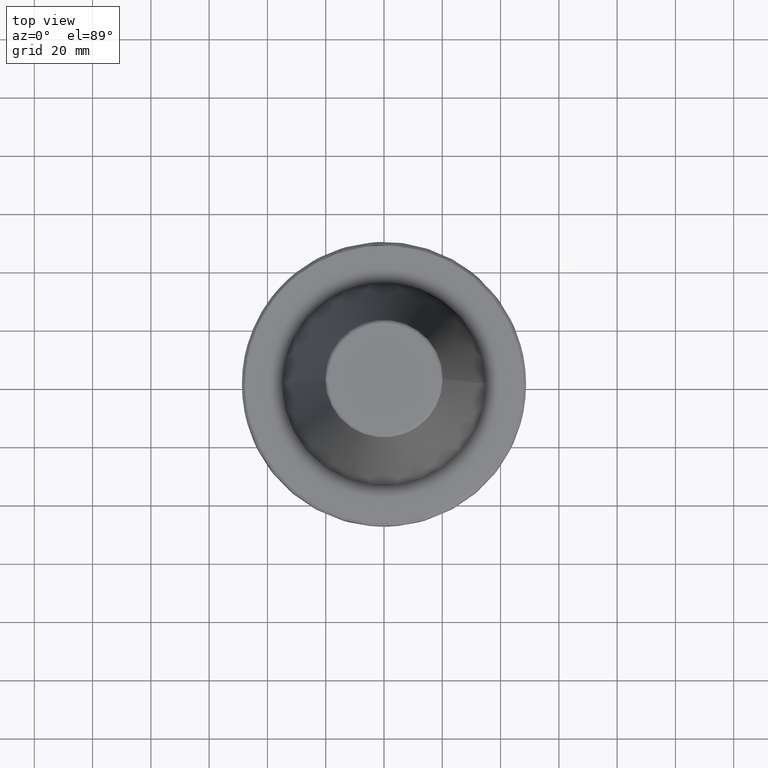
[diagram: clean part render]
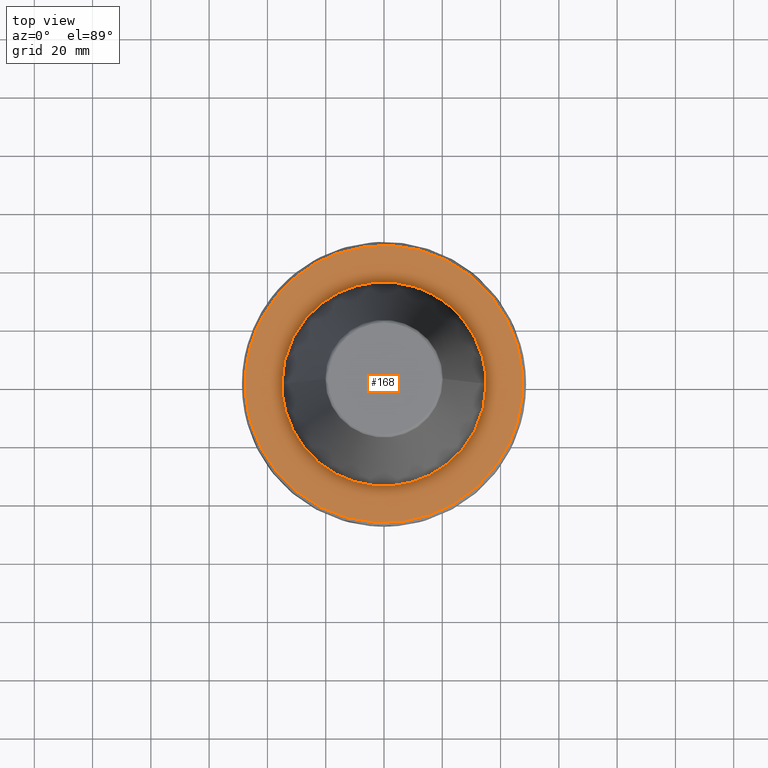
[diagram: same view with one face highlighted and labeled with its STEP entity id]
A machine part, top view. The second image highlights one B-rep face of the part: STEP entity #168.
In plain terms, the highlighted planar face has unit normal (0, 0, 1).
Its self-contained STEP definition (entity closure, byte-faithful):
#4 = FACE_OUTER_BOUND ( 'NONE', #1306, .T. ) ;
#14 = CARTESIAN_POINT ( 'NONE',  ( -34.45762826542809200, 6.138388980637486700, -3.200000000000000600 ) ) ;
#28 = CARTESIAN_POINT ( 'NONE',  ( -32.10730462063523300, 13.98287206292032200, -3.200000000000000200 ) ) ;
#39 = CARTESIAN_POINT ( 'NONE',  ( -20.02866069170161700, 28.70573247898518700, -3.200000000000001100 ) ) ;
#47 = CARTESIAN_POINT ( 'NONE',  ( -12.91629066188498200, 32.52953514518012000, -3.200000000000000200 ) ) ;
#59 = CARTESIAN_POINT ( 'NONE',  ( 2.668954907924300900, 34.92698936520180600, -3.199999999999999700 ) ) ;
#74 = CARTESIAN_POINT ( 'NONE',  ( 12.65220399756351800, 32.63327705773371400, -3.200000000000000200 ) ) ;
#81 = CARTESIAN_POINT ( 'NONE',  ( 23.04041976307144100, 26.45700235561194100, -3.199999999999999700 ) ) ;
#96 = CARTESIAN_POINT ( 'NONE',  ( 32.34918825184107000, 13.36300299976604200, -3.200000000000001100 ) ) ;
#135 = ORIENTED_EDGE ( 'NONE', *, *, #757, .F. ) ;
#148 = ORIENTED_EDGE ( 'NONE', *, *, #1544, .T. ) ;
#168 = ADVANCED_FACE ( 'NONE', ( #4, #594 ), #1914, .T. ) ;
#195 = ORIENTED_EDGE ( 'NONE', *, *, #2734, .F. ) ;
#199 = ORIENTED_EDGE ( 'NONE', *, *, #2776, .F. ) ;
#282 = EDGE_CURVE ( 'NONE', #2927, #2479, #2040, .T. ) ;
#296 = CARTESIAN_POINT ( 'NONE',  ( -34.42781351200215300, 6.302914691289114300, -3.200000000000000200 ) ) ;
#306 = CARTESIAN_POINT ( 'NONE',  ( -30.38123465407781200, 17.39569460392992200, -3.199999999999998800 ) ) ;
#320 = CARTESIAN_POINT ( 'NONE',  ( -19.40440699318107300, 29.12859832659959000, -3.200000000000000200 ) ) ;
#332 = EDGE_LOOP ( 'NONE', ( #2676, #973 ) ) ;
#335 = CARTESIAN_POINT ( 'NONE',  ( -10.22234251034705100, 33.50782965913711600, -3.200000000000000200 ) ) ;
#342 = CARTESIAN_POINT ( 'NONE',  ( 5.446642676596225000, 34.57547315144680800, -3.200000000000000600 ) ) ;
#349 = CARTESIAN_POINT ( 'NONE',  ( 12.81732741286386600, 32.56865578623165900, -3.200000000000001100 ) ) ;
#360 = CARTESIAN_POINT ( 'NONE',  ( 26.81177841657013900, 22.55445595757559800, -3.200000000000000200 ) ) ;
#374 = CARTESIAN_POINT ( 'NONE',  ( 32.48790124032222300, 13.02066417721462900, -3.200000000000000200 ) ) ;
#427 = DIRECTION ( 'NONE',  ( -1.000000000000000000, 0.0000000000000000000, 0.0000000000000000000 ) ) ;
#433 = DIRECTION ( 'NONE',  ( -0.0000000000000000000, -0.0000000000000000000, -1.000000000000000000 ) ) ;
#439 = CARTESIAN_POINT ( 'NONE',  ( 34.40272425953227000, 6.438461267130299400, -3.199999999999999700 ) ) ;
#440 = CARTESIAN_POINT ( 'NONE',  ( 0.0000000000000000000, 0.0000000000000000000, -3.200000000000008200 ) ) ;
#469 = B_SPLINE_CURVE_WITH_KNOTS ( 'NONE', 3,
 ( #809, #2702, #2942, #1346, #3220, #1626, #14, #1904, #296, #2186, #570, #2451, #822, #2712, #1088, #2955, #1355, #3232, #1640, #28, #1921, #306, #2200, #585, #2462, #832, #2724, #1099, #2965, #1365, #3248, #1651, #39, #1934, #320, #2211, #595, #2475, #842, #2737, #1111, #2978, #1376, #3261, #1661, #47, #1944, #335, #2221, #604, #2489, #853, #2742, #1122, #2991, #1389, #3267, #1672, #59, #1953, #342, #2232, #613, #2500, #864, #2756, #1128, #3004, #1399, #3280, #1684, #74, #1964, #349, #2241, #627, #2511, #875, #2768, #1142, #3010, #1413, #3290, #1698, #81, #1978, #360, #2249, #638, #2525, #885, #2777, #1154, #3025, #1422, #3305, #1709, #96, #1991, #374, #2257, #648, #2537, #899, #2788, #1166, #3037, #1436, #1612, #439, #2325, #707, #2593, #959 ),
 .UNSPECIFIED., .F., .F.,
 ( 4, 1, 1, 1, 1, 1, 2, 2, 1, 1, 1, 1, 1, 2, 2, 1, 1, 1, 1, 2, 2, 2, 1, 1, 1, 1, 2, 2, 1, 1, 1, 1, 1, 2, 2, 1, 1, 1, 1, 1, 2, 2, 2, 1, 1, 1, 1, 1, 2, 2, 1, 1, 1, 1, 1, 2, 2, 1, 1, 1, 1, 2, 2, 2, 1, 1, 1, 1, 2, 2, 1, 1, 1, 1, 1, 2, 2, 1, 1, 1, 1, 1, 2, 2, 4 ),
 ( 0.0000000000000000000, 0.03124999999999877200, 0.04687499999999816100, 0.05468749999999786300, 0.05859374999999769600, 0.06054687499999759900, 0.06152343749999752300, 0.06249999999999744000, 0.09374999999999490700, 0.1093749999999936000, 0.1171874999999929600, 0.1210937499999926600, 0.1230468749999925300, 0.1240234374999925100, 0.1249999999999924800, 0.1562499999999923900, 0.1718749999999923100, 0.1796874999999922600, 0.1835937499999922000, 0.1855468749999921500, 0.1874999999999921200, 0.2499999999999907300, 0.2812499999999900600, 0.2968749999999897300, 0.3046874999999895600, 0.3085937499999895600, 0.3105468749999895600, 0.3124999999999896200, 0.3437499999999892300, 0.3593749999999890600, 0.3671874999999890100, 0.3710937499999889500, 0.3730468749999889500, 0.3740234374999889500, 0.3749999999999889500, 0.4062499999999907900, 0.4218749999999916700, 0.4296874999999921200, 0.4335937499999923400, 0.4355468749999924500, 0.4365234374999925100, 0.4374999999999925600, 0.4999999999999948900, 0.5312499999999961100, 0.5468749999999966700, 0.5546874999999970000, 0.5585937499999971100, 0.5605468749999972200, 0.5615234374999971100, 0.5624999999999971100, 0.5937499999999980000, 0.6093749999999983300, 0.6171874999999986700, 0.6210937499999986700, 0.6230468749999986700, 0.6240234374999987800, 0.6249999999999988900, 0.6562499999999993300, 0.6718749999999995600, 0.6796874999999995600, 0.6835937499999996700, 0.6855468749999996700, 0.6874999999999997800, 0.7500000000000016700, 0.7812500000000026600, 0.7968750000000032200, 0.8046875000000034400, 0.8085937500000036600, 0.8105468750000036600, 0.8125000000000036600, 0.8437500000000036600, 0.8593750000000037700, 0.8671875000000037700, 0.8710937500000038900, 0.8730468750000037700, 0.8740234375000037700, 0.8750000000000036600, 0.9062500000000028900, 0.9218750000000024400, 0.9296875000000022200, 0.9335937500000021100, 0.9355468750000020000, 0.9365234375000018900, 0.9375000000000018900, 1.000000000000000000 ),
 .UNSPECIFIED. ) ;
#487 = VERTEX_POINT ( 'NONE', #1503 ) ;
#508 = AXIS2_PLACEMENT_3D ( 'NONE', #1712, #1435, #3168 ) ;
#537 = VERTEX_POINT ( 'NONE', #1444 ) ;
#570 = CARTESIAN_POINT ( 'NONE',  ( -34.20919177140901000, 7.484680064057585900, -3.200000000000000200 ) ) ;
#584 = DIRECTION ( 'NONE',  ( -0.0000000000000000000, -0.0000000000000000000, -1.000000000000000000 ) ) ;
#585 = CARTESIAN_POINT ( 'NONE',  ( -29.57513658499466700, 18.71766838408074600, -3.200000000000000200 ) ) ;
#594 = FACE_BOUND ( 'NONE', #332, .T. ) ;
#595 = CARTESIAN_POINT ( 'NONE',  ( -19.21420423913537700, 29.25439692751829300, -3.200000000000001100 ) ) ;
#604 = CARTESIAN_POINT ( 'NONE',  ( -7.342137192614635500, 34.22336994003888600, -3.200000000000000200 ) ) ;
#613 = CARTESIAN_POINT ( 'NONE',  ( 6.138370408955123200, 34.45763170187248600, -3.200000000000000600 ) ) ;
#627 = CARTESIAN_POINT ( 'NONE',  ( 13.98287206292189900, 32.10730462063747100, -3.200000000000000600 ) ) ;
#631 = VERTEX_POINT ( 'NONE', #1619 ) ;
#637 = DIRECTION ( 'NONE',  ( -1.000000000000000000, 0.0000000000000000000, 0.0000000000000000000 ) ) ;
#638 = CARTESIAN_POINT ( 'NONE',  ( 28.70573247902078500, 20.02866069165706600, -3.200000000000000200 ) ) ;
#648 = CARTESIAN_POINT ( 'NONE',  ( 32.52953514517933100, 12.91629066188748200, -3.200000000000001100 ) ) ;
#707 = CARTESIAN_POINT ( 'NONE',  ( 34.80522929819336800, 4.263852012523358300, -3.200000000000000200 ) ) ;
#757 = EDGE_CURVE ( 'NONE', #2927, #487, #2897, .T. ) ;
#768 = CARTESIAN_POINT ( 'NONE',  ( 41.16595836708885500, 23.86724792863052300, -3.200000000000000200 ) ) ;
#774 = CARTESIAN_POINT ( 'NONE',  ( 41.10589712480054900, 23.97055010317598100, -3.200000000000000600 ) ) ;
#809 = CARTESIAN_POINT ( 'NONE',  ( -35.00000000000000000, 4.286263797015737300E-015, -3.200000000000000600 ) ) ;
#814 = CARTESIAN_POINT ( 'NONE',  ( 45.61430141498814100, -13.55000000000001700, -3.200000000000008200 ) ) ;
#822 = CARTESIAN_POINT ( 'NONE',  ( -33.22762448502673000, 11.02286519843548100, -3.199999999999999300 ) ) ;
#825 = CARTESIAN_POINT ( 'NONE',  ( 44.92181312358058400, -15.88117119192728700, -3.200000000000000200 ) ) ;
#832 = CARTESIAN_POINT ( 'NONE',  ( -29.37554792989231300, 19.02846970913294200, -3.200000000000000600 ) ) ;
#837 = CARTESIAN_POINT ( 'NONE',  ( 44.05578048499769700, -18.14579602868220900, -3.200000000000000200 ) ) ;
#842 = CARTESIAN_POINT ( 'NONE',  ( -16.63655267340255200, 30.83329837198616000, -3.200000000000001100 ) ) ;
#846 = CARTESIAN_POINT ( 'NONE',  ( 42.99996010883702300, -20.37821948653961700, -3.200000000000000200 ) ) ;
#853 = CARTESIAN_POINT ( 'NONE',  ( -6.612690763923023200, 34.36977381871476900, -3.200000000000000200 ) ) ;
#855 = DIRECTION ( 'NONE',  ( -1.000000000000000000, 0.0000000000000000000, 0.0000000000000000000 ) ) ;
#858 = CARTESIAN_POINT ( 'NONE',  ( 42.98237818865914800, -20.41528033294570200, -3.199999999999999700 ) ) ;
#864 = CARTESIAN_POINT ( 'NONE',  ( 6.302909256718462100, 34.42781451759762500, -3.199999999999999300 ) ) ;
#866 = DIRECTION ( 'NONE',  ( -0.0000000000000000000, -0.0000000000000000000, -1.000000000000000000 ) ) ;
#868 = CARTESIAN_POINT ( 'NONE',  ( 42.94842543565755500, -20.48661267978846500, -3.200000000000001100 ) ) ;
#875 = CARTESIAN_POINT ( 'NONE',  ( 17.39569460393197900, 30.38123465408075700, -3.200000000000000200 ) ) ;
#877 = CARTESIAN_POINT ( 'NONE',  ( 0.0000000000000000000, 0.0000000000000000000, -3.200000000000008200 ) ) ;
#878 = CARTESIAN_POINT ( 'NONE',  ( 42.89736886373383800, -20.59353772421453900, -3.200000000000000600 ) ) ;
#885 = CARTESIAN_POINT ( 'NONE',  ( 29.12859832661076400, 19.40440699316710000, -3.200000000000000200 ) ) ;
#899 = CARTESIAN_POINT ( 'NONE',  ( 33.50782965918070000, 10.22234251020762700, -3.199999999999999700 ) ) ;
#902 = CARTESIAN_POINT ( 'NONE',  ( 42.77734476562955700, -20.84251516367561800, -3.199999999999999300 ) ) ;
#904 = CARTESIAN_POINT ( 'NONE',  ( -36.93598507658066400, 30.00000000000000000, -3.200000000000008200 ) ) ;
#909 = CARTESIAN_POINT ( 'NONE',  ( 42.53372818162512900, -21.33841271913206600, -3.199999999999999700 ) ) ;
#915 = CARTESIAN_POINT ( 'NONE',  ( -45.61430141498814100, 13.55000000000000600, -3.200000000000000600 ) ) ;
#921 = CARTESIAN_POINT ( 'NONE',  ( 42.03222146243282300, -22.32197853618211200, -3.200000000000000200 ) ) ;
#925 = CARTESIAN_POINT ( 'NONE',  ( 40.97211381931431600, -24.25619299483076600, -3.200000000000000200 ) ) ;
#927 = CARTESIAN_POINT ( 'NONE',  ( -44.72296385806428300, 16.55057121653314000, -3.200000000000000200 ) ) ;
#932 = CARTESIAN_POINT ( 'NONE',  ( 39.96557434566893400, -25.85766165861286600, -3.200000000000000200 ) ) ;
#941 = CARTESIAN_POINT ( 'NONE',  ( 39.20638976705219400, -26.96538805818833900, -3.200000000000000200 ) ) ;
#943 = CARTESIAN_POINT ( 'NONE',  ( -43.54708784151173300, 19.43494740894583800, -3.200000000000000200 ) ) ;
#950 = CARTESIAN_POINT ( 'NONE',  ( 39.15911966686518000, -27.03399514045117500, -3.199999999999999700 ) ) ;
#953 = CARTESIAN_POINT ( 'NONE',  ( -40.62625888914929800, 24.97130974553040200, -3.200000000000000600 ) ) ;
#959 = CARTESIAN_POINT ( 'NONE',  ( 35.00000000000000000, 0.0000000000000000000, -3.200000000000000600 ) ) ;
#960 = CARTESIAN_POINT ( 'NONE',  ( 39.06671061191455200, -27.16737028581245300, -3.200000000000000600 ) ) ;
#972 = CARTESIAN_POINT ( 'NONE',  ( 38.92761599111415200, -27.36704069050718900, -3.200000000000001500 ) ) ;
#973 = ORIENTED_EDGE ( 'NONE', *, *, #2580, .T. ) ;
#975 = CARTESIAN_POINT ( 'NONE',  ( 3.009240607197016400, 47.48922112369720600, -3.200000000000001500 ) ) ;
#978 = VERTEX_POINT ( 'NONE', #1091 ) ;
#984 = CARTESIAN_POINT ( 'NONE',  ( 38.59969460729236300, -27.83019210803135800, -3.200000000000000200 ) ) ;
#992 = CARTESIAN_POINT ( 'NONE',  ( 37.93038276516526300, -28.74551016935878400, -3.200000000000000200 ) ) ;
#1001 = CARTESIAN_POINT ( 'NONE',  ( 36.53788278297688700, -30.53220719713016600, -3.199999999999999300 ) ) ;
#1010 = CARTESIAN_POINT ( 'NONE',  ( 35.25195200178546200, -31.98833762970524600, -3.200000000000000600 ) ) ;
#1013 = CARTESIAN_POINT ( 'NONE',  ( -38.90919501517004200, 27.57058490517672000, -3.199999999999999700 ) ) ;
#1025 = CARTESIAN_POINT ( 'NONE',  ( 34.29747021916148200, -32.98419360930214600, -3.200000000000000200 ) ) ;
#1030 = CARTESIAN_POINT ( 'NONE',  ( 30.16990998852274000, 36.79819512847421900, -3.200000000000000200 ) ) ;
#1037 = CARTESIAN_POINT ( 'NONE',  ( 34.23960624551992300, -33.04425963289077800, -3.200000000000000600 ) ) ;
#1051 = CARTESIAN_POINT ( 'NONE',  ( 34.12517462230931600, -33.16242677106549100, -3.200000000000000200 ) ) ;
#1067 = CARTESIAN_POINT ( 'NONE',  ( 33.95310552513754500, -33.33919882940795500, -3.199999999999999700 ) ) ;
#1082 = CARTESIAN_POINT ( 'NONE',  ( 33.54865932857901400, -33.74831642310303400, -3.200000000000000200 ) ) ;
#1088 = CARTESIAN_POINT ( 'NONE',  ( -32.72251864197475200, 12.42068019834804300, -3.200000000000000600 ) ) ;
#1091 = CARTESIAN_POINT ( 'NONE',  ( -47.58431457505077600, 0.0000000000000000000, -3.200000000000006000 ) ) ;
#1092 = CARTESIAN_POINT ( 'NONE',  ( 32.72796038949768900, -34.55314944074387300, -3.199999999999998400 ) ) ;
#1099 = CARTESIAN_POINT ( 'NONE',  ( -27.97287582442092500, 21.17444947139290100, -3.200000000000000600 ) ) ;
#1102 = CARTESIAN_POINT ( 'NONE',  ( 31.03933632747802200, -36.10920679702845600, -3.200000000000001100 ) ) ;
#1111 = CARTESIAN_POINT ( 'NONE',  ( -13.83968161197703100, 32.14999761353126200, -3.200000000000000200 ) ) ;
#1116 = CARTESIAN_POINT ( 'NONE',  ( 29.51098510199188100, -37.35106965270580300, -3.200000000000000600 ) ) ;
#1122 = CARTESIAN_POINT ( 'NONE',  ( -6.438461267135233300, 34.40272425953072900, -3.200000000000000200 ) ) ;
#1125 = CARTESIAN_POINT ( 'NONE',  ( 26.34633708791774300, -39.71226124063848300, -3.200000000000001100 ) ) ;
#1128 = CARTESIAN_POINT ( 'NONE',  ( 7.484680064034233900, 34.20919177141554000, -3.199999999999999700 ) ) ;
#1133 = CARTESIAN_POINT ( 'NONE',  ( 24.12040806556534600, -41.10236839388669200, -3.200000000000000600 ) ) ;
#1141 = CARTESIAN_POINT ( 'NONE',  ( -2.153043807382593500, 47.53623884645557500, -3.200000000000000200 ) ) ;
#1142 = CARTESIAN_POINT ( 'NONE',  ( 18.71766838408140600, 29.57513658499558300, -3.200000000000000600 ) ) ;
#1147 = CARTESIAN_POINT ( 'NONE',  ( 21.63374689602198900, -42.38248318243373100, -3.200000000000000200 ) ) ;
#1153 = CARTESIAN_POINT ( 'NONE',  ( -2.645014036823139400, 47.51138638385852200, -3.200000000000000600 ) ) ;
#1154 = CARTESIAN_POINT ( 'NONE',  ( 29.25439692751638500, 19.21420423913906100, -3.200000000000000200 ) ) ;
#1159 = CARTESIAN_POINT ( 'NONE',  ( 21.49105359666984700, -42.45501299877353300, -3.200000000000000200 ) ) ;
#1160 = AXIS2_PLACEMENT_3D ( 'NONE', #440, #433, #427 ) ;
#1166 = CARTESIAN_POINT ( 'NONE',  ( 34.22336994005794300, 7.342137192553624700, -3.200000000000000200 ) ) ;
#1169 = CARTESIAN_POINT ( 'NONE',  ( 21.20113734478530900, -42.60054918468672700, -3.199999999999999700 ) ) ;
#1177 = CARTESIAN_POINT ( 'NONE',  ( 45.61430141498814800, 13.54999999999998500, -3.200000000000008200 ) ) ;
#1178 = CARTESIAN_POINT ( 'NONE',  ( 20.76531420086981000, -42.81655896321532100, -3.199999999999998800 ) ) ;
#1193 = CARTESIAN_POINT ( 'NONE',  ( 19.74175216911296700, -43.30452027739400500, -3.200000000000000600 ) ) ;
#1197 = CARTESIAN_POINT ( 'NONE',  ( 17.66806265511632300, -44.21619689619897300, -3.200000000000001100 ) ) ;
#1201 = CARTESIAN_POINT ( 'NONE',  ( -19.83745916813386900, 43.25225713279606800, -3.199999999999999700 ) ) ;
#1203 = B_SPLINE_CURVE_WITH_KNOTS ( 'NONE', 3,
 ( #1455, #1013, #953, #943, #927, #915 ),
 .UNSPECIFIED., .F., .F.,
 ( 4, 2, 4 ),
 ( 0.0000000000000000000, 0.5000000000000000000, 1.000000000000000000 ),
 .UNSPECIFIED. ) ;
#1205 = CARTESIAN_POINT ( 'NONE',  ( 15.84507372800566400, -44.88749798165630300, -3.200000000000000600 ) ) ;
#1212 = CARTESIAN_POINT ( 'NONE',  ( 14.53228453995896500, -45.31099424278906400, -3.199999999999999300 ) ) ;
#1217 = CARTESIAN_POINT ( 'NONE',  ( 14.45906218180935500, -45.33440982915662700, -3.199999999999999300 ) ) ;
#1223 = CARTESIAN_POINT ( 'NONE',  ( 14.30848230516371300, -45.38216414505269800, -3.200000000000000200 ) ) ;
#1229 = CARTESIAN_POINT ( 'NONE',  ( -2.889151954426300700, 47.49717070755006900, -3.199999999999999700 ) ) ;
#1237 = CARTESIAN_POINT ( 'NONE',  ( 14.08247786511371100, -45.45322280365279300, -3.200000000000000200 ) ) ;
#1241 = CARTESIAN_POINT ( 'NONE',  ( 41.46762625119976800, 23.34110521963310000, -3.199999999999999700 ) ) ;
#1243 = ORIENTED_EDGE ( 'NONE', *, *, #2498, .T. ) ;
#1249 = CARTESIAN_POINT ( 'NONE',  ( 13.55419179609300800, -45.61501663367840100, -3.199999999999999700 ) ) ;
#1254 = CARTESIAN_POINT ( 'NONE',  ( -13.13810827484324400, 45.73940813873869600, -3.200000000000001100 ) ) ;
#1261 = CARTESIAN_POINT ( 'NONE',  ( 12.49385015576880200, -45.92256546689765900, -3.199999999999999300 ) ) ;
#1265 = CARTESIAN_POINT ( 'NONE',  ( -13.85084669834794500, 45.52455029067187600, -3.199999999999999700 ) ) ;
#1269 = CARTESIAN_POINT ( 'NONE',  ( -30.00000000000000000, 36.93598507658067100, -3.200000000000008200 ) ) ;
#1281 = CARTESIAN_POINT ( 'NONE',  ( 10.35808886598919900, -46.47350782600837200, -3.199999999999999700 ) ) ;
#1287 = CARTESIAN_POINT ( 'NONE',  ( 8.501588316238894500, -46.83576360696996900, -3.200000000000001100 ) ) ;
#1289 = CARTESIAN_POINT ( 'NONE',  ( -11.46493010783894400, 46.20125035460578300, -3.199999999999999700 ) ) ;
#1299 = CARTESIAN_POINT ( 'NONE',  ( 7.213397181111044000, -47.03440671490921700, -3.200000000000000200 ) ) ;
#1306 = EDGE_LOOP ( 'NONE', ( #199, #1243, #1724, #195, #148, #135, #1478 ) ) ;
#1314 = CARTESIAN_POINT ( 'NONE',  ( 7.177316945106275300, -47.03992463040862000, -3.200000000000000600 ) ) ;
#1330 = CARTESIAN_POINT ( 'NONE',  ( 7.102190460185399300, -47.05132629008073100, -3.200000000000000200 ) ) ;
#1339 = CARTESIAN_POINT ( 'NONE',  ( 6.989490578891860700, -47.06829303564229100, -3.199999999999999300 ) ) ;
#1346 = CARTESIAN_POINT ( 'NONE',  ( -34.71393053172149500, 4.522777660849747000, -3.199999999999999700 ) ) ;
#1350 = CARTESIAN_POINT ( 'NONE',  ( 6.726453111821363100, -47.10693190099277000, -3.199999999999999700 ) ) ;
#1352 = B_SPLINE_CURVE_WITH_KNOTS ( 'NONE', 3,
 ( #2041, #2056, #1995, #1983, #1971, #1957, #1947, #1940, #1911, #1894, #1869, #1856, #1846, #1835, #1820, #1811, #1800, #1788, #1774, #1770, #1763, #1755, #1749, #1742, #1732, #1727, #1713, #1701, #1687, #1678, #1666, #1656, #1644, #1633, #1616, #1599, #1584, #1556, #1546, #1536, #1527, #1510, #1500, #1488, #1483, #1473, #1468, #1461, #1458, #1446, #1439, #1425, #1417, #1405, #1392, #1380, #1372, #1360, #1350, #1339, #1330, #1314, #1299, #1287, #1281, #1261, #1249, #1237, #1223, #1217, #1212, #1205, #1197, #1193, #1178, #1169, #1159, #1147, #1133, #1125, #1116, #1102, #1092, #1082, #1067, #1051, #1037, #1025, #1010, #1001, #992, #984, #972, #960, #950, #941, #932, #925, #921, #909, #902, #878, #868, #858, #846, #837, #825, #814 ),
 .UNSPECIFIED., .F., .F.,
 ( 4, 1, 1, 1, 1, 1, 2, 2, 1, 1, 1, 1, 2, 2, 1, 1, 1, 2, 2, 2, 1, 1, 1, 1, 2, 2, 1, 1, 1, 1, 2, 2, 1, 1, 1, 1, 1, 2, 2, 2, 1, 1, 1, 1, 1, 2, 2, 1, 1, 1, 1, 2, 2, 1, 1, 1, 2, 2, 2, 1, 1, 1, 1, 2, 2, 1, 1, 1, 1, 2, 2, 1, 1, 1, 1, 1, 2, 2, 4 ),
 ( 0.0000000000000000000, 0.03124999999999855700, 0.04687499999999786300, 0.05468749999999751600, 0.05859374999999734900, 0.06054687499999722400, 0.06152343749999712700, 0.06249999999999702300, 0.09374999999999457400, 0.1093749999999934400, 0.1171874999999928700, 0.1210937499999925900, 0.1230468749999924900, 0.1249999999999923800, 0.1562499999999910600, 0.1718749999999904800, 0.1796874999999902900, 0.1835937499999902000, 0.1874999999999900900, 0.2499999999999895600, 0.2812499999999892900, 0.2968749999999890600, 0.3046874999999889000, 0.3085937499999888400, 0.3105468749999888400, 0.3124999999999887900, 0.3437499999999893400, 0.3593749999999896700, 0.3671874999999898400, 0.3710937499999899500, 0.3730468749999900600, 0.3749999999999901200, 0.4062499999999904500, 0.4218749999999906200, 0.4296874999999906700, 0.4335937499999907300, 0.4355468749999907900, 0.4365234374999907900, 0.4374999999999907900, 0.4999999999999924500, 0.5312499999999932300, 0.5468749999999935600, 0.5546874999999937800, 0.5585937499999938900, 0.5605468749999938900, 0.5615234374999938900, 0.5624999999999940000, 0.5937499999999943400, 0.6093749999999944500, 0.6171874999999945600, 0.6210937499999946700, 0.6230468749999946700, 0.6249999999999946700, 0.6562499999999946700, 0.6718749999999946700, 0.6796874999999947800, 0.6835937499999947800, 0.6874999999999946700, 0.7499999999999951200, 0.7812499999999954500, 0.7968749999999956700, 0.8046874999999958900, 0.8085937499999960000, 0.8105468749999960000, 0.8124999999999960000, 0.8437499999999972200, 0.8593749999999976700, 0.8671874999999980000, 0.8710937499999982200, 0.8730468749999982200, 0.8749999999999982200, 0.9062499999999985600, 0.9218749999999987800, 0.9296874999999988900, 0.9335937499999990000, 0.9355468749999990000, 0.9365234374999990000, 0.9374999999999991100, 1.000000000000000000 ),
 .UNSPECIFIED. ) ;
#1355 = CARTESIAN_POINT ( 'NONE',  ( -32.59456622067332200, 12.75129574512329000, -3.200000000000000200 ) ) ;
#1360 = CARTESIAN_POINT ( 'NONE',  ( 6.200093868138055500, -47.18040880118785900, -3.199999999999999700 ) ) ;
#1365 = CARTESIAN_POINT ( 'NONE',  ( -23.89460483454596200, 25.60289613071151700, -3.199999999999999700 ) ) ;
#1372 = CARTESIAN_POINT ( 'NONE',  ( 5.146238142602173900, -47.31215927955447100, -3.200000000000001500 ) ) ;
#1376 = CARTESIAN_POINT ( 'NONE',  ( -13.12353511134512400, 32.44661293862448300, -3.200000000000000200 ) ) ;
#1380 = CARTESIAN_POINT ( 'NONE',  ( 3.033977738853334700, -47.51484694819341600, -3.200000000000001100 ) ) ;
#1389 = CARTESIAN_POINT ( 'NONE',  ( -4.264027316417490000, 34.80519685506052200, -3.200000000000000200 ) ) ;
#1392 = CARTESIAN_POINT ( 'NONE',  ( 1.215670616765094600, -47.58432788457948000, -3.200000000000000600 ) ) ;
#1399 = CARTESIAN_POINT ( 'NONE',  ( 11.02286519840483300, 33.22762448503527100, -3.200000000000000200 ) ) ;
#1405 = CARTESIAN_POINT ( 'NONE',  ( -2.431341233530364100, -47.58428795599334600, -3.200000000000000200 ) ) ;
#1413 = CARTESIAN_POINT ( 'NONE',  ( 19.02846970913313700, 29.37554792989258000, -3.199999999999999700 ) ) ;
#1417 = CARTESIAN_POINT ( 'NONE',  ( -4.849501380326033000, -47.39897883243537500, -3.199999999999999700 ) ) ;
#1419 = CARTESIAN_POINT ( 'NONE',  ( -45.61430141498814100, 13.55000000000000600, -3.200000000000000600 ) ) ;
#1422 = CARTESIAN_POINT ( 'NONE',  ( 30.83329837203913100, 16.63655267329933100, -3.200000000000000600 ) ) ;
#1425 = CARTESIAN_POINT ( 'NONE',  ( -7.289979086986721600, -47.02259673295161200, -3.199999999999999700 ) ) ;
#1435 = DIRECTION ( 'NONE',  ( 0.0000000000000000000, 0.0000000000000000000, 1.000000000000000000 ) ) ;
#1436 = CARTESIAN_POINT ( 'NONE',  ( 34.36977381872005600, 6.612690763906142500, -3.200000000000000200 ) ) ;
#1439 = CARTESIAN_POINT ( 'NONE',  ( -7.330514881574560900, -47.01629565795958900, -3.200000000000000200 ) ) ;
#1444 = CARTESIAN_POINT ( 'NONE',  ( -35.00000000000000000, 4.286263797015737300E-015, -3.200000000000000600 ) ) ;
#1446 = CARTESIAN_POINT ( 'NONE',  ( -7.408562343341471600, -47.00406100007397500, -3.199999999999999700 ) ) ;
#1455 = CARTESIAN_POINT ( 'NONE',  ( -36.93598507658066400, 30.00000000000000000, -3.200000000000008200 ) ) ;
#1458 = CARTESIAN_POINT ( 'NONE',  ( -7.525599392299199900, -46.98556592419018300, -3.199999999999999700 ) ) ;
#1461 = CARTESIAN_POINT ( 'NONE',  ( -7.798446834018816000, -46.94140912374030700, -3.200000000000001500 ) ) ;
#1468 = CARTESIAN_POINT ( 'NONE',  ( -8.343185694064336700, -46.84908902928985000, -3.200000000000000600 ) ) ;
#1473 = CARTESIAN_POINT ( 'NONE',  ( -9.428839320580580700, -46.64842286618620200, -3.200000000000000200 ) ) ;
#1478 = ORIENTED_EDGE ( 'NONE', *, *, #282, .T. ) ;
#1483 = CARTESIAN_POINT ( 'NONE',  ( -11.58485019931381100, -46.18298664316795800, -3.199999999999999700 ) ) ;
#1488 = CARTESIAN_POINT ( 'NONE',  ( -13.40663716800074600, -45.67414891461924500, -3.200000000000000200 ) ) ;
#1500 = CARTESIAN_POINT ( 'NONE',  ( -14.68468682495937800, -45.26182855947883600, -3.200000000000000600 ) ) ;
#1502 = CARTESIAN_POINT ( 'NONE',  ( 34.92696098682253600, -2.669108274075315400, -3.200000000000001100 ) ) ;
#1503 = CARTESIAN_POINT ( 'NONE',  ( 45.61430141498814100, -13.55000000000001700, -3.200000000000008200 ) ) ;
#1510 = CARTESIAN_POINT ( 'NONE',  ( -14.76391406653001300, -45.23605185882265500, -3.200000000000001100 ) ) ;
#1527 = CARTESIAN_POINT ( 'NONE',  ( -14.91808160768008000, -45.18544818222386500, -3.200000000000000600 ) ) ;
#1530 = CARTESIAN_POINT ( 'NONE',  ( 20.91936532353698300, 42.74416180623448700, -3.200000000000000600 ) ) ;
#1533 = CARTESIAN_POINT ( 'NONE',  ( 22.43503376051662800, 41.98321477246887700, -3.200000000000000600 ) ) ;
#1536 = CARTESIAN_POINT ( 'NONE',  ( -15.14909382739881000, -45.10896982992070300, -3.200000000000000200 ) ) ;
#1537 = CIRCLE ( 'NONE', #1160, 47.58431457505077600 ) ;
#1544 = EDGE_CURVE ( 'NONE', #631, #487, #1352, .T. ) ;
#1546 = CARTESIAN_POINT ( 'NONE',  ( -15.68644869603131800, -44.92651047937867800, -3.200000000000000200 ) ) ;
#1556 = CARTESIAN_POINT ( 'NONE',  ( -16.75446385711807200, -44.54555233095589300, -3.199999999999999700 ) ) ;
#1566 = CARTESIAN_POINT ( 'NONE',  ( 24.95587079667329200, 40.51526929576604600, -3.199999999999999300 ) ) ;
#1572 = CARTESIAN_POINT ( 'NONE',  ( 33.13646789430458700, 34.16474037057050600, -3.200000000000000600 ) ) ;
#1574 = CARTESIAN_POINT ( 'NONE',  ( 35.23207161259706100, 32.04549828589326700, -3.200000000000000200 ) ) ;
#1578 = CARTESIAN_POINT ( 'NONE',  ( -14.32504166206599400, 45.37755050977440900, -3.200000000000000200 ) ) ;
#1583 = CARTESIAN_POINT ( 'NONE',  ( 32.05755272122296200, 35.18967846163106100, -3.200000000000000600 ) ) ;
#1584 = CARTESIAN_POINT ( 'NONE',  ( -18.86371587457862400, -43.71947824475564200, -3.200000000000000200 ) ) ;
#1593 = CARTESIAN_POINT ( 'NONE',  ( 40.54480131739867200, 24.92706840147657100, -3.200000000000000200 ) ) ;
#1599 = CARTESIAN_POINT ( 'NONE',  ( -20.62574051003685900, -42.90142996054735400, -3.200000000000001100 ) ) ;
#1612 = CARTESIAN_POINT ( 'NONE',  ( 34.38960595214368300, 6.508170961267745200, -3.199999999999999300 ) ) ;
#1616 = CARTESIAN_POINT ( 'NONE',  ( -21.85216361824259900, -42.27004183451738600, -3.199999999999999700 ) ) ;
#1619 = CARTESIAN_POINT ( 'NONE',  ( -45.61430141498816200, -13.54999999999995100, -3.200000000000000200 ) ) ;
#1620 = CARTESIAN_POINT ( 'NONE',  ( 35.00000000000000000, 0.0000000000000000000, -3.200000000000000600 ) ) ;
#1625 = CARTESIAN_POINT ( 'NONE',  ( 20.15248412370166900, 43.10740714057632800, -3.200000000000000200 ) ) ;
#1626 = CARTESIAN_POINT ( 'NONE',  ( -34.49823719593175000, 5.907950186018663200, -3.200000000000000600 ) ) ;
#1633 = CARTESIAN_POINT ( 'NONE',  ( -21.92622009204935900, -42.23167771956659800, -3.200000000000000200 ) ) ;
#1639 = CARTESIAN_POINT ( 'NONE',  ( 10.16745593403839700, 46.48964783889043400, -3.200000000000000600 ) ) ;
#1640 = CARTESIAN_POINT ( 'NONE',  ( -32.55619322207724100, 12.84895367128259600, -3.200000000000000200 ) ) ;
#1644 = CARTESIAN_POINT ( 'NONE',  ( -22.07208034060929000, -42.15563262231303600, -3.200000000000000200 ) ) ;
#1651 = CARTESIAN_POINT ( 'NONE',  ( -20.88778623097507000, 28.09551826173528600, -3.200000000000001100 ) ) ;
#1656 = CARTESIAN_POINT ( 'NONE',  ( -22.29053195242550700, -42.04102447213165300, -3.200000000000000200 ) ) ;
#1661 = CARTESIAN_POINT ( 'NONE',  ( -12.95202981245626000, 32.51532341133582800, -3.199999999999999700 ) ) ;
#1666 = CARTESIAN_POINT ( 'NONE',  ( -22.79788105283110900, -41.76982192493439800, -3.200000000000000200 ) ) ;
#1672 = CARTESIAN_POINT ( 'NONE',  ( 1.070209459212092300, 35.00001621621675700, -3.200000000000001100 ) ) ;
#1674 = AXIS2_PLACEMENT_3D ( 'NONE', #3045, #584, #637 ) ;
#1677 = CARTESIAN_POINT ( 'NONE',  ( 8.656115448807391000, 46.79040597101618500, -3.199999999999999700 ) ) ;
#1678 = CARTESIAN_POINT ( 'NONE',  ( -23.80309394498000900, -41.21228271011087000, -3.199999999999999700 ) ) ;
#1684 = CARTESIAN_POINT ( 'NONE',  ( 12.42068019833845600, 32.72251864197743000, -3.200000000000000200 ) ) ;
#1686 = DIRECTION ( 'NONE',  ( -1.000000000000000000, 0.0000000000000000000, 0.0000000000000000000 ) ) ;
#1687 = CARTESIAN_POINT ( 'NONE',  ( -25.77557849462854400, -40.03666779874743000, -3.199999999999999700 ) ) ;
#1692 = EDGE_CURVE ( 'NONE', #978, #2094, #1537, .T. ) ;
#1698 = CARTESIAN_POINT ( 'NONE',  ( 21.17444947147954100, 27.97287582435764400, -3.200000000000000600 ) ) ;
#1699 = DIRECTION ( 'NONE',  ( -0.0000000000000000000, -0.0000000000000000000, -1.000000000000000000 ) ) ;
#1700 = CARTESIAN_POINT ( 'NONE',  ( 43.99724211658683300, 18.12757647529779700, -3.200000000000000200 ) ) ;
#1701 = CARTESIAN_POINT ( 'NONE',  ( -27.40123742064285800, -38.92522104892214700, -3.200000000000000600 ) ) ;
#1708 = CARTESIAN_POINT ( 'NONE',  ( 8.599105360734835600, 46.80091873707301200, -3.199999999999999700 ) ) ;
#1709 = CARTESIAN_POINT ( 'NONE',  ( 32.14999761355444000, 13.83968161193186200, -3.200000000000000200 ) ) ;
#1712 = CARTESIAN_POINT ( 'NONE',  ( 0.0000000000000000000, 0.0000000000000000000, -3.200000000000000200 ) ) ;
#1713 = CARTESIAN_POINT ( 'NONE',  ( -30.56583245061599300, -36.56395844820560400, -3.199999999999999700 ) ) ;
#1724 = ORIENTED_EDGE ( 'NONE', *, *, #1692, .F. ) ;
#1727 = CARTESIAN_POINT ( 'NONE',  ( -32.53223893874955800, -34.82602765848644600, -3.199999999999999700 ) ) ;
#1732 = CARTESIAN_POINT ( 'NONE',  ( -34.46745228560130400, -32.80683798250324700, -3.199999999999999700 ) ) ;
#1742 = CARTESIAN_POINT ( 'NONE',  ( -34.57761234898174500, -32.69070567706504000, -3.199999999999999300 ) ) ;
#1749 = CARTESIAN_POINT ( 'NONE',  ( -34.79967915309887900, -32.45423464496881400, -3.200000000000000600 ) ) ;
#1752 = CARTESIAN_POINT ( 'NONE',  ( 25.99808194461567700, 39.85970698513112600, -3.200000000000000200 ) ) ;
#1754 = CARTESIAN_POINT ( 'NONE',  ( 36.53624278579643200, 30.55028448884537800, -3.200000000000000600 ) ) ;
#1755 = CARTESIAN_POINT ( 'NONE',  ( -35.13085002078460000, -32.09796523345951200, -3.200000000000000200 ) ) ;
#1763 = CARTESIAN_POINT ( 'NONE',  ( -35.89007667595516400, -31.25572989638334000, -3.200000000000001100 ) ) ;
#1766 = CARTESIAN_POINT ( 'NONE',  ( 34.71393053172150900, -4.522777660849745200, -3.200000000000000600 ) ) ;
#1769 = CARTESIAN_POINT ( 'NONE',  ( 24.74573972520320100, 40.64394770848628000, -3.199999999999999700 ) ) ;
#1770 = CARTESIAN_POINT ( 'NONE',  ( -37.35450850857828400, -29.52749904801299200, -3.200000000000000200 ) ) ;
#1774 = CARTESIAN_POINT ( 'NONE',  ( -38.51712754616725200, -27.97114087932187600, -3.200000000000000600 ) ) ;
#1783 = AXIS2_PLACEMENT_3D ( 'NONE', #1906, #1699, #1686 ) ;
#1788 = CARTESIAN_POINT ( 'NONE',  ( -39.29691769202110400, -26.83329560689395900, -3.200000000000001500 ) ) ;
#1795 = CARTESIAN_POINT ( 'NONE',  ( 43.72038509902864000, 18.78292708330470600, -3.200000000000000200 ) ) ;
#1800 = CARTESIAN_POINT ( 'NONE',  ( -39.34021449235848400, -26.76977245758111200, -3.200000000000001100 ) ) ;
#1811 = CARTESIAN_POINT ( 'NONE',  ( -39.42887053638241900, -26.63902506832856100, -3.199999999999999700 ) ) ;
#1815 = CARTESIAN_POINT ( 'NONE',  ( 3.614324310248195900, 47.44794916077007200, -3.200000000000000200 ) ) ;
#1820 = CARTESIAN_POINT ( 'NONE',  ( -39.56134383752528500, -26.44261181935876000, -3.200000000000000200 ) ) ;
#1835 = CARTESIAN_POINT ( 'NONE',  ( -39.86687285260708100, -25.98226908279222500, -3.200000000000000200 ) ) ;
#1837 = CARTESIAN_POINT ( 'NONE',  ( 19.60099611362383600, 43.35979223299119000, -3.200000000000000200 ) ) ;
#1841 = CARTESIAN_POINT ( 'NONE',  ( 38.04468543629964500, 28.58198463059184000, -3.199999999999999700 ) ) ;
#1845 = CARTESIAN_POINT ( 'NONE',  ( -23.93254399511004500, 41.13291324448347600, -3.199999999999999300 ) ) ;
#1846 = CARTESIAN_POINT ( 'NONE',  ( -40.46362946576459800, -25.05340298711130500, -3.200000000000000600 ) ) ;
#1856 = CARTESIAN_POINT ( 'NONE',  ( -41.59993702405524400, -23.16294830555793600, -3.199999999999999700 ) ) ;
#1869 = CARTESIAN_POINT ( 'NONE',  ( -42.47584807169122500, -21.48646288104105700, -3.199999999999999700 ) ) ;
#1870 = CARTESIAN_POINT ( 'NONE',  ( 17.64654270466424200, 44.23199334315661700, -3.200000000000000600 ) ) ;
#1876 = CARTESIAN_POINT ( 'NONE',  ( 43.69747580304702700, 18.83616776526730200, -3.199999999999999700 ) ) ;
#1881 = CARTESIAN_POINT ( 'NONE',  ( 15.87259900951194100, 44.89906720438591500, -3.199999999999999300 ) ) ;
#1888 = CARTESIAN_POINT ( 'NONE',  ( 1.782910742008477500, 47.56112784876267300, -3.199999999999999700 ) ) ;
#1894 = CARTESIAN_POINT ( 'NONE',  ( -43.03308960635038000, -20.30816862367808200, -3.199999999999999700 ) ) ;
#1897 = CARTESIAN_POINT ( 'NONE',  ( -1.415082110017375400, 47.56778356128077000, -3.200000000000001100 ) ) ;
#1904 = CARTESIAN_POINT ( 'NONE',  ( -34.43979647510159500, 6.237109590206945800, -3.200000000000001100 ) ) ;
#1906 = CARTESIAN_POINT ( 'NONE',  ( 0.0000000000000000000, 0.0000000000000000000, -3.200000000000008200 ) ) ;
#1911 = CARTESIAN_POINT ( 'NONE',  ( -43.04865088728065800, -20.27515829117827600, -3.199999999999999300 ) ) ;
#1914 = PLANE ( 'NONE',  #508 ) ;
#1921 = CARTESIAN_POINT ( 'NONE',  ( -31.37487172765630900, 15.59116830083820700, -3.199999999999999700 ) ) ;
#1933 = CARTESIAN_POINT ( 'NONE',  ( -18.71353161066880600, 43.75500246139003500, -3.199999999999999700 ) ) ;
#1934 = CARTESIAN_POINT ( 'NONE',  ( -19.59265025308431900, 29.00292566126676500, -3.199999999999999300 ) ) ;
#1940 = CARTESIAN_POINT ( 'NONE',  ( -43.08097109733553500, -20.20639356877527600, -3.199999999999999700 ) ) ;
#1944 = CARTESIAN_POINT ( 'NONE',  ( -11.82808836364358700, 32.96036308134373600, -3.199999999999999700 ) ) ;
#1947 = CARTESIAN_POINT ( 'NONE',  ( -43.12932423443162100, -20.10319798185436500, -3.199999999999999700 ) ) ;
#1953 = CARTESIAN_POINT ( 'NONE',  ( 4.522662636236486100, 34.71395181550598600, -3.199999999999999300 ) ) ;
#1956 = CARTESIAN_POINT ( 'NONE',  ( 2.889977175542016500, 47.49663232912722300, -3.200000000000001100 ) ) ;
#1957 = CARTESIAN_POINT ( 'NONE',  ( -43.24125797508517600, -19.86206875582389800, -3.200000000000000200 ) ) ;
#1964 = CARTESIAN_POINT ( 'NONE',  ( 12.75129574512042500, 32.59456622067411800, -3.200000000000000200 ) ) ;
#1971 = CARTESIAN_POINT ( 'NONE',  ( -43.46156447277677200, -19.37845221090307400, -3.200000000000000600 ) ) ;
#1978 = CARTESIAN_POINT ( 'NONE',  ( 25.60289613075804000, 23.89460483448777900, -3.200000000000000200 ) ) ;
#1982 = CARTESIAN_POINT ( 'NONE',  ( 43.28805540108506700, 19.78267870937098700, -3.200000000000000200 ) ) ;
#1983 = CARTESIAN_POINT ( 'NONE',  ( -43.88793353369768400, -18.40578674962172200, -3.200000000000000200 ) ) ;
#1991 = CARTESIAN_POINT ( 'NONE',  ( 32.44661293863091300, 13.12353511133261600, -3.200000000000000600 ) ) ;
#1994 = CARTESIAN_POINT ( 'NONE',  ( 38.33853659443814600, 28.18663181543956900, -3.200000000000001100 ) ) ;
#1995 = CARTESIAN_POINT ( 'NONE',  ( -44.68369591769041400, -16.43872634130028800, -3.200000000000001500 ) ) ;
#2024 = CARTESIAN_POINT ( 'NONE',  ( 42.67032287643228700, 21.09892721098846400, -3.199999999999998800 ) ) ;
#2040 = B_SPLINE_CURVE_WITH_KNOTS ( 'NONE', 3,
 ( #1177, #2304, #3324, #3315, #1700, #2918, #2697, #1795, #1876, #1982, #2024, #3157, #1241, #3349, #768, #774, #1593, #3239, #3231, #1994, #1841, #2474, #1754, #1574, #1572, #1583, #3402, #1030, #2825, #2142, #2136, #2062, #1752, #2293, #1566, #1769, #2707, #3252, #1533, #1530, #1625, #2340, #1837, #2429, #2729, #1870, #1881, #3295, #3260, #1639, #2197, #2193, #3304, #1677, #1708, #2327, #2620, #2616, #1815, #3463, #975, #1956, #1888, #2433, #1897, #1141, #1153, #1229, #3437, #3433, #2455, #1289, #1254, #1265, #1578, #2994, #3226, #2393, #1933, #3173, #1201, #2884, #3100, #2450, #2877, #1845, #2637, #3307, #3329, #2074, #2072, #2682, #2779, #2404 ),
 .UNSPECIFIED., .F., .F.,
 ( 4, 1, 1, 1, 1, 2, 2, 1, 1, 1, 2, 2, 1, 1, 2, 2, 2, 1, 1, 2, 2, 1, 1, 1, 2, 2, 1, 1, 1, 1, 2, 2, 2, 1, 1, 1, 1, 2, 2, 1, 1, 1, 2, 2, 1, 1, 2, 2, 2, 1, 1, 2, 2, 1, 1, 1, 2, 2, 1, 1, 1, 1, 2, 2, 4 ),
 ( 0.0000000000000000000, 0.03124999999999753000, 0.04687499999999636400, 0.05468749999999578100, 0.05859374999999558000, 0.06054687499999553100, 0.06249999999999547600, 0.09374999999999437900, 0.1093749999999937800, 0.1171874999999934200, 0.1210937499999933500, 0.1249999999999932800, 0.1562499999999935900, 0.1718749999999937300, 0.1796874999999938100, 0.1874999999999938900, 0.2499999999999937300, 0.2812499999999936200, 0.2968749999999936700, 0.3046874999999937300, 0.3124999999999937800, 0.3437499999999941200, 0.3593749999999943400, 0.3671874999999943900, 0.3710937499999943900, 0.3749999999999943400, 0.4062499999999943900, 0.4218749999999945600, 0.4296874999999946200, 0.4335937499999946200, 0.4355468749999946200, 0.4374999999999946200, 0.4999999999999951200, 0.5312499999999953400, 0.5468749999999954500, 0.5546874999999954500, 0.5585937499999954500, 0.5605468749999955600, 0.5624999999999955600, 0.5937499999999963400, 0.6093749999999966700, 0.6171874999999968900, 0.6210937499999970000, 0.6249999999999971100, 0.6562499999999978900, 0.6718749999999982200, 0.6796874999999983300, 0.6874999999999984500, 0.7499999999999997800, 0.7812500000000004400, 0.7968750000000007800, 0.8046875000000008900, 0.8125000000000010000, 0.8437500000000014400, 0.8593750000000016700, 0.8671875000000017800, 0.8710937500000017800, 0.8750000000000017800, 0.9062500000000018900, 0.9218750000000020000, 0.9296875000000021100, 0.9335937500000022200, 0.9355468750000023300, 0.9375000000000023300, 1.000000000000000000 ),
 .UNSPECIFIED. ) ;
#2041 = CARTESIAN_POINT ( 'NONE',  ( -45.61430141498816200, -13.54999999999995100, -3.200000000000000200 ) ) ;
#2053 = VERTEX_POINT ( 'NONE', #1620 ) ;
#2056 = CARTESIAN_POINT ( 'NONE',  ( -45.26810526765719800, -14.71542401572408400, -3.200000000000000600 ) ) ;
#2062 = CARTESIAN_POINT ( 'NONE',  ( 27.43086430564404300, 38.90399569013028000, -3.199999999999999700 ) ) ;
#2072 = CARTESIAN_POINT ( 'NONE',  ( -25.33204419653259300, 40.28098785900193900, -3.200000000000000200 ) ) ;
#2074 = CARTESIAN_POINT ( 'NONE',  ( -25.27949011361637200, 40.31399222872044400, -3.200000000000000200 ) ) ;
#2094 = VERTEX_POINT ( 'NONE', #1419 ) ;
#2136 = CARTESIAN_POINT ( 'NONE',  ( 28.61973875757003700, 38.02828181971434400, -3.200000000000000200 ) ) ;
#2142 = CARTESIAN_POINT ( 'NONE',  ( 29.58867595935849000, 37.26711317191480800, -3.200000000000000600 ) ) ;
#2186 = CARTESIAN_POINT ( 'NONE',  ( -34.42214089842920500, 6.333832670999061800, -3.199999999999999700 ) ) ;
#2193 = CARTESIAN_POINT ( 'NONE',  ( 8.947554896767426800, 46.73577824853473600, -3.200000000000000200 ) ) ;
#2197 = CARTESIAN_POINT ( 'NONE',  ( 9.354935358589495200, 46.65674270211674500, -3.200000000000000600 ) ) ;
#2200 = CARTESIAN_POINT ( 'NONE',  ( -29.84963310934612200, 18.28000292852267300, -3.200000000000000200 ) ) ;
#2211 = CARTESIAN_POINT ( 'NONE',  ( -19.27860445472269300, 29.21200324985276000, -3.200000000000000600 ) ) ;
#2221 = CARTESIAN_POINT ( 'NONE',  ( -8.308886591331488000, 34.00795424928465100, -3.200000000000000600 ) ) ;
#2232 = CARTESIAN_POINT ( 'NONE',  ( 5.907914240827012400, 34.49824384711439500, -3.199999999999999700 ) ) ;
#2241 = CARTESIAN_POINT ( 'NONE',  ( 12.84895367128254200, 32.55619322207718400, -3.200000000000000200 ) ) ;
#2249 = CARTESIAN_POINT ( 'NONE',  ( 28.09551826179633900, 20.88778623089868700, -3.200000000000000200 ) ) ;
#2254 = CARTESIAN_POINT ( 'NONE',  ( -35.00000000000000000, 4.286263797015737300E-015, -3.200000000000000600 ) ) ;
#2257 = CARTESIAN_POINT ( 'NONE',  ( 32.51532341133770400, 12.95202981245260600, -3.200000000000000600 ) ) ;
#2263 = CARTESIAN_POINT ( 'NONE',  ( -35.00000000000000000, -2.140949734350461300, -3.199999999999999300 ) ) ;
#2275 = CARTESIAN_POINT ( 'NONE',  ( -34.80522929819336000, -4.263852012492216100, -3.199999999999999700 ) ) ;
#2281 = CARTESIAN_POINT ( 'NONE',  ( -34.40960131014864500, -6.401595191017770000, -3.200000000000000600 ) ) ;
#2292 = CIRCLE ( 'NONE', #2661, 47.58431457505077600 ) ;
#2293 = CARTESIAN_POINT ( 'NONE',  ( 25.27025022232281200, 40.32107391084372900, -3.199999999999999700 ) ) ;
#2296 = CARTESIAN_POINT ( 'NONE',  ( -34.40272425953199300, -6.438461267132821900, -3.200000000000001100 ) ) ;
#2304 = CARTESIAN_POINT ( 'NONE',  ( 45.34410715120667800, 14.45957362278436300, -3.200000000000000200 ) ) ;
#2311 = CARTESIAN_POINT ( 'NONE',  ( -34.38960595214313500, -6.508170961272730500, -3.200000000000000600 ) ) ;
#2323 = CARTESIAN_POINT ( 'NONE',  ( -34.36977381871909600, -6.612690763914757900, -3.200000000000000600 ) ) ;
#2325 = CARTESIAN_POINT ( 'NONE',  ( 34.40960131014864500, 6.401595191017278800, -3.200000000000000600 ) ) ;
#2327 = CARTESIAN_POINT ( 'NONE',  ( 7.584584315874153000, 46.98600002214963200, -3.199999999999999700 ) ) ;
#2332 = CARTESIAN_POINT ( 'NONE',  ( -34.32241613434451500, -6.856257133437938300, -3.200000000000000200 ) ) ;
#2340 = CARTESIAN_POINT ( 'NONE',  ( 19.76678177844764100, 43.28472276211201100, -3.200000000000000600 ) ) ;
#2375 = CIRCLE ( 'NONE', #1783, 47.58431457505077600 ) ;
#2393 = CARTESIAN_POINT ( 'NONE',  ( -17.12310430754070400, 44.41590363918441400, -3.200000000000001100 ) ) ;
#2403 = CARTESIAN_POINT ( 'NONE',  ( -34.22336994005453900, -7.342137192584755400, -3.200000000000000200 ) ) ;
#2404 = CARTESIAN_POINT ( 'NONE',  ( -30.00000000000000000, 36.93598507658067100, -3.200000000000008200 ) ) ;
#2410 = CARTESIAN_POINT ( 'NONE',  ( -34.00795424931148100, -8.308886591280263200, -3.200000000000000600 ) ) ;
#2413 = CARTESIAN_POINT ( 'NONE',  ( -33.50782965917290600, -10.22234251027873800, -3.199999999999999700 ) ) ;
#2429 = CARTESIAN_POINT ( 'NONE',  ( 19.49036463491575000, 43.40963344949943800, -3.199999999999999700 ) ) ;
#2432 = CARTESIAN_POINT ( 'NONE',  ( -32.96036308136418600, -11.82808836360453800, -3.200000000000000600 ) ) ;
#2433 = CARTESIAN_POINT ( 'NONE',  ( 0.3068729895989130200, 47.60125004237991700, -3.200000000000000200 ) ) ;
#2443 = CARTESIAN_POINT ( 'NONE',  ( -32.52953514517947300, -12.91629066188620600, -3.200000000000001500 ) ) ;
#2450 = CARTESIAN_POINT ( 'NONE',  ( -21.16233354877233800, 42.63057220840472200, -3.200000000000000200 ) ) ;
#2451 = CARTESIAN_POINT ( 'NONE',  ( -33.82018250935632900, 9.135985986312031000, -3.200000000000000600 ) ) ;
#2453 = CARTESIAN_POINT ( 'NONE',  ( -32.51532341133536600, -12.95202981245658700, -3.200000000000000200 ) ) ;
#2455 = CARTESIAN_POINT ( 'NONE',  ( -10.01342565813241200, 46.52941323171096900, -3.200000000000000200 ) ) ;
#2457 = CARTESIAN_POINT ( 'NONE',  ( -32.48790124031761900, -13.02066417722249800, -3.200000000000001100 ) ) ;
#2462 = CARTESIAN_POINT ( 'NONE',  ( -29.45563184198997300, 18.90427742787601100, -3.199999999999999700 ) ) ;
#2465 = CARTESIAN_POINT ( 'NONE',  ( -32.44661293862293400, -13.12353511134623600, -3.200000000000000600 ) ) ;
#2468 = CARTESIAN_POINT ( 'NONE',  ( -32.34918825182566600, -13.36300299979238400, -3.200000000000000200 ) ) ;
#2474 = CARTESIAN_POINT ( 'NONE',  ( 37.89729735943479500, 28.77713114763101000, -3.200000000000000200 ) ) ;
#2475 = CARTESIAN_POINT ( 'NONE',  ( -18.16253543799391000, 29.94197833480527700, -3.200000000000000600 ) ) ;
#2479 = VERTEX_POINT ( 'NONE', #1269 ) ;
#2482 = CARTESIAN_POINT ( 'NONE',  ( -32.14999761352568400, -13.83968161198105500, -3.199999999999999700 ) ) ;
#2484 = CARTESIAN_POINT ( 'NONE',  ( -31.73425127810394000, -14.78401017754392500, -3.200000000000000600 ) ) ;
#2489 = CARTESIAN_POINT ( 'NONE',  ( -6.856257133453938800, 34.32241613433611600, -3.200000000000001100 ) ) ;
#2494 = CARTESIAN_POINT ( 'NONE',  ( -30.83329837197338800, -16.63655267341178100, -3.200000000000001500 ) ) ;
#2498 = EDGE_CURVE ( 'NONE', #2508, #2094, #1203, .T. ) ;
#2500 = CARTESIAN_POINT ( 'NONE',  ( 6.237098849441338200, 34.43979846253830600, -3.199999999999999700 ) ) ;
#2504 = CARTESIAN_POINT ( 'NONE',  ( -29.94197833479797300, -18.16253543799919300, -3.200000000000000600 ) ) ;
#2508 = VERTEX_POINT ( 'NONE', #904 ) ;
#2511 = CARTESIAN_POINT ( 'NONE',  ( 15.59116830084095000, 31.37487172766022800, -3.199999999999999700 ) ) ;
#2518 = CARTESIAN_POINT ( 'NONE',  ( -29.25439692751874100, -19.21420423913502900, -3.200000000000000600 ) ) ;
#2525 = CARTESIAN_POINT ( 'NONE',  ( 29.00292566128584700, 19.59265025306045900, -3.200000000000000200 ) ) ;
#2532 = CARTESIAN_POINT ( 'NONE',  ( -29.21200324985685300, -19.27860445471714700, -3.200000000000000600 ) ) ;
#2537 = CARTESIAN_POINT ( 'NONE',  ( 32.96036308136864100, 11.82808836356392300, -3.199999999999999700 ) ) ;
#2541 = CARTESIAN_POINT ( 'NONE',  ( -29.12859832660762600, -19.40440699317025200, -3.200000000000000600 ) ) ;
#2552 = CARTESIAN_POINT ( 'NONE',  ( -29.00292566128046800, -19.59265025306582700, -3.200000000000000600 ) ) ;
#2562 = CARTESIAN_POINT ( 'NONE',  ( -28.70573247901074200, -20.02866069166710600, -3.200000000000001100 ) ) ;
#2572 = CARTESIAN_POINT ( 'NONE',  ( -28.09551826177911600, -20.88778623091590700, -3.200000000000000600 ) ) ;
#2580 = EDGE_CURVE ( 'NONE', #2053, #537, #2958, .T. ) ;
#2582 = CARTESIAN_POINT ( 'NONE',  ( -26.81177841654718800, -22.55445595759855200, -3.200000000000001100 ) ) ;
#2591 = CARTESIAN_POINT ( 'NONE',  ( -25.60289613074492700, -23.89460483450089300, -3.200000000000001100 ) ) ;
#2593 = CARTESIAN_POINT ( 'NONE',  ( 35.00000000000001400, 2.140949734381700300, -3.200000000000000600 ) ) ;
#2602 = CARTESIAN_POINT ( 'NONE',  ( -23.04041976309767400, -26.45700235558571100, -3.199999999999999700 ) ) ;
#2613 = CARTESIAN_POINT ( 'NONE',  ( -21.17444947146037700, -27.97287582437680700, -3.199999999999999700 ) ) ;
#2616 = CARTESIAN_POINT ( 'NONE',  ( 4.460096613536384400, 47.37922375094827000, -3.200000000000001500 ) ) ;
#2620 = CARTESIAN_POINT ( 'NONE',  ( 6.146894581347632800, 47.20314471345571400, -3.200000000000001100 ) ) ;
#2624 = CARTESIAN_POINT ( 'NONE',  ( 45.61430141498814800, 13.54999999999998500, -3.200000000000008200 ) ) ;
#2637 = CARTESIAN_POINT ( 'NONE',  ( -24.66047681321442300, 40.69683095873308800, -3.200000000000001100 ) ) ;
#2661 = AXIS2_PLACEMENT_3D ( 'NONE', #877, #866, #855 ) ;
#2665 = CARTESIAN_POINT ( 'NONE',  ( -19.08915049026184700, -29.33615436353641900, -3.200000000000000600 ) ) ;
#2668 = CARTESIAN_POINT ( 'NONE',  ( -19.02846970913748200, -29.37554792988932900, -3.199999999999998800 ) ) ;
#2676 = ORIENTED_EDGE ( 'NONE', *, *, #3281, .T. ) ;
#2677 = CARTESIAN_POINT ( 'NONE',  ( -18.90427742788488900, -29.45563184198417900, -3.200000000000000600 ) ) ;
#2680 = CARTESIAN_POINT ( 'NONE',  ( -18.71766838409589400, -29.57513658498475500, -3.200000000000000600 ) ) ;
#2682 = CARTESIAN_POINT ( 'NONE',  ( -26.98740680887002000, 39.23710298026052400, -3.199999999999999700 ) ) ;
#2693 = CARTESIAN_POINT ( 'NONE',  ( -18.28000292855092800, -29.84963310932764500, -3.199999999999999700 ) ) ;
#2696 = CARTESIAN_POINT ( 'NONE',  ( -17.39569460397837400, -30.38123465404614300, -3.200000000000000600 ) ) ;
#2697 = CARTESIAN_POINT ( 'NONE',  ( 43.76706569847472400, 18.67389639942733800, -3.200000000000001100 ) ) ;
#2702 = CARTESIAN_POINT ( 'NONE',  ( -35.00000000000001400, 1.070297097012678800, -3.200000000000000600 ) ) ;
#2705 = CARTESIAN_POINT ( 'NONE',  ( -15.59116830090281700, -31.37487172761408500, -3.200000000000001500 ) ) ;
#2707 = CARTESIAN_POINT ( 'NONE',  ( 24.63874541703533400, 40.70889109936176500, -3.200000000000000200 ) ) ;
#2708 = CARTESIAN_POINT ( 'NONE',  ( -13.98287206295725200, -32.10730462061110300, -3.200000000000000200 ) ) ;
#2712 = CARTESIAN_POINT ( 'NONE',  ( -32.89666700154491300, 11.95639371353719200, -3.200000000000000200 ) ) ;
#2715 = CARTESIAN_POINT ( 'NONE',  ( -12.84895367128145700, -32.55619322207798700, -3.200000000000000200 ) ) ;
#2719 = CARTESIAN_POINT ( 'NONE',  ( -12.81732741286802100, -32.56865578623072800, -3.200000000000000600 ) ) ;
#2724 = CARTESIAN_POINT ( 'NONE',  ( -29.33615436353504800, 19.08915049026396100, -3.200000000000000200 ) ) ;
#2728 = CARTESIAN_POINT ( 'NONE',  ( -12.75129574512861600, -32.59456622067233400, -3.200000000000000200 ) ) ;
#2729 = CARTESIAN_POINT ( 'NONE',  ( 19.43372875604140000, 43.43501619728882400, -3.199999999999999700 ) ) ;
#2731 = CARTESIAN_POINT ( 'NONE',  ( -12.65220399757766000, -32.63327705773065200, -3.199999999999999300 ) ) ;
#2734 = EDGE_CURVE ( 'NONE', #631, #978, #2375, .T. ) ;
#2737 = CARTESIAN_POINT ( 'NONE',  ( -14.78401017753703600, 31.73425127811351500, -3.200000000000001500 ) ) ;
#2739 = CARTESIAN_POINT ( 'NONE',  ( -12.42068019836582900, -32.72251864197144000, -3.200000000000001500 ) ) ;
#2741 = CARTESIAN_POINT ( 'NONE',  ( -11.95639371357037600, -32.89666700153875900, -3.200000000000000600 ) ) ;
#2742 = CARTESIAN_POINT ( 'NONE',  ( -6.508170961277508000, 34.38960595214063400, -3.199999999999999700 ) ) ;
#2749 = CARTESIAN_POINT ( 'NONE',  ( -11.02286519849236900, -33.22762448501621400, -3.200000000000000200 ) ) ;
#2756 = CARTESIAN_POINT ( 'NONE',  ( 6.333832670999783000, 34.42214089842899900, -3.200000000000000600 ) ) ;
#2763 = CARTESIAN_POINT ( 'NONE',  ( -9.135985986387860100, -33.82018250934229500, -3.199999999999999700 ) ) ;
#2768 = CARTESIAN_POINT ( 'NONE',  ( 18.28000292852387400, 29.84963310934783100, -3.200000000000000200 ) ) ;
#2772 = CARTESIAN_POINT ( 'NONE',  ( -7.484680064100915700, -34.20919177140100200, -3.200000000000000600 ) ) ;
#2776 = EDGE_CURVE ( 'NONE', #2508, #2479, #2292, .T. ) ;
#2777 = CARTESIAN_POINT ( 'NONE',  ( 29.21200324985845900, 19.27860445471553800, -3.200000000000001100 ) ) ;
#2779 = CARTESIAN_POINT ( 'NONE',  ( -28.52667124222444200, 38.13264634449122100, -3.200000000000000200 ) ) ;
#2781 = CARTESIAN_POINT ( 'NONE',  ( -6.333832670997710000, -34.42214089842946100, -3.200000000000000200 ) ) ;
#2788 = CARTESIAN_POINT ( 'NONE',  ( 34.00795424931733600, 8.308886591226912100, -3.200000000000001100 ) ) ;
#2791 = CARTESIAN_POINT ( 'NONE',  ( -6.302909256716819900, -34.42781451759805800, -3.199999999999999300 ) ) ;
#2800 = CARTESIAN_POINT ( 'NONE',  ( -6.237098849438081200, -34.43979846253916600, -3.200000000000000200 ) ) ;
#2817 = CARTESIAN_POINT ( 'NONE',  ( -6.138370408949490400, -34.45763170187397900, -3.200000000000000600 ) ) ;
#2825 = CARTESIAN_POINT ( 'NONE',  ( 29.78434383588273700, 37.11093869942935400, -3.200000000000001100 ) ) ;
#2832 = CARTESIAN_POINT ( 'NONE',  ( -5.907914240816079900, -34.49824384711726600, -3.199999999999999700 ) ) ;
#2843 = CARTESIAN_POINT ( 'NONE',  ( -5.446642676575814700, -34.57547315145217200, -3.199999999999999700 ) ) ;
#2850 = CARTESIAN_POINT ( 'NONE',  ( -4.522662636201488300, -34.71395181551518000, -3.200000000000000200 ) ) ;
#2861 = CARTESIAN_POINT ( 'NONE',  ( -2.668954907877634200, -34.92698936521405500, -3.200000000000001500 ) ) ;
#2877 = CARTESIAN_POINT ( 'NONE',  ( -22.45806956475531600, 41.97089674870178300, -3.199999999999999700 ) ) ;
#2884 = CARTESIAN_POINT ( 'NONE',  ( -20.06115815705340900, 43.14895193716142100, -3.200000000000000600 ) ) ;
#2897 = CIRCLE ( 'NONE', #1674, 47.58431457505077600 ) ;
#2906 = CARTESIAN_POINT ( 'NONE',  ( -1.070209459185427600, -35.00001621622374900, -3.200000000000001500 ) ) ;
#2910 = CARTESIAN_POINT ( 'NONE',  ( 2.140418918370826000, -34.99996756755254500, -3.199999999999999700 ) ) ;
#2917 = CARTESIAN_POINT ( 'NONE',  ( 4.264027316360163400, -34.80519685504652500, -3.200000000000000200 ) ) ;
#2918 = CARTESIAN_POINT ( 'NONE',  ( 43.83677434805175500, 18.51023748605553000, -3.199999999999999700 ) ) ;
#2927 = VERTEX_POINT ( 'NONE', #2624 ) ;
#2928 = CARTESIAN_POINT ( 'NONE',  ( 6.401592451894831700, -34.40960181707281900, -3.199999999999999700 ) ) ;
#2932 = CARTESIAN_POINT ( 'NONE',  ( 6.438461267130185700, -34.40272425953249800, -3.199999999999999700 ) ) ;
#2942 = CARTESIAN_POINT ( 'NONE',  ( -34.92696098682252200, 2.669108274075320700, -3.200000000000000200 ) ) ;
#2944 = CARTESIAN_POINT ( 'NONE',  ( 6.508170961267519600, -34.38960595214408000, -3.200000000000000200 ) ) ;
#2948 = CARTESIAN_POINT ( 'NONE',  ( 6.612690763905746400, -34.36977381872073800, -3.200000000000001100 ) ) ;
#2955 = CARTESIAN_POINT ( 'NONE',  ( -32.63327705773234300, 12.65220399756846900, -3.199999999999999700 ) ) ;
#2958 = B_SPLINE_CURVE_WITH_KNOTS ( 'NONE', 3,
 ( #3323, #3124, #1502, #1766, #3468, #3466, #3458, #3455, #3400, #3390, #3375, #3361, #3351, #3342, #3332, #3319, #3309, #3297, #3285, #3272, #3265, #3262, #3254, #3251, #3242, #3238, #3225, #3221, #3215, #3210, #3198, #3192, #3180, #3178, #3121, #3110, #3094, #3088, #3076, #3059, #3048, #3039, #3031, #3007, #2996, #2985, #2983, #2971, #2967, #2962, #2959, #2948, #2944, #2932, #2928, #2917, #2910, #2906, #2861, #2850, #2843, #2832, #2817, #2800, #2791, #2781, #2772, #2763, #2749, #2741, #2739, #2731, #2728, #2719, #2715, #2708, #2705, #2696, #2693, #2680, #2677, #2668, #2665, #2613, #2602, #2591, #2582, #2572, #2562, #2552, #2541, #2532, #2518, #2504, #2494, #2484, #2482, #2468, #2465, #2457, #2453, #2443, #2432, #2413, #2410, #2403, #2332, #2323, #2311, #2296, #2281, #2275, #2263, #2254 ),
 .UNSPECIFIED., .F., .F.,
 ( 4, 1, 1, 1, 1, 1, 2, 2, 1, 1, 1, 1, 1, 2, 2, 1, 1, 1, 1, 2, 2, 2, 1, 1, 1, 1, 2, 2, 1, 1, 1, 1, 1, 2, 2, 1, 1, 1, 1, 1, 2, 2, 2, 1, 1, 1, 1, 1, 2, 2, 1, 1, 1, 1, 1, 2, 2, 1, 1, 1, 1, 2, 2, 2, 1, 1, 1, 1, 2, 2, 1, 1, 1, 1, 1, 2, 2, 1, 1, 1, 1, 1, 2, 2, 4 ),
 ( 0.0000000000000000000, 0.03124999999999995100, 0.04687499999999993100, 0.05468749999999993100, 0.05859374999999991000, 0.06054687499999991000, 0.06152343749999988200, 0.06249999999999985400, 0.09374999999999808500, 0.1093749999999971400, 0.1171874999999966800, 0.1210937499999964600, 0.1230468749999963800, 0.1240234374999963800, 0.1249999999999963800, 0.1562499999999951400, 0.1718749999999945000, 0.1796874999999942300, 0.1835937499999940600, 0.1855468749999939500, 0.1874999999999938400, 0.2499999999999893400, 0.2812499999999871200, 0.2968749999999860100, 0.3046874999999854000, 0.3085937499999851200, 0.3105468749999850100, 0.3124999999999849000, 0.3437499999999827400, 0.3593749999999816300, 0.3671874999999811300, 0.3710937499999808500, 0.3730468749999806300, 0.3740234374999805700, 0.3749999999999805200, 0.4062499999999794100, 0.4218749999999788500, 0.4296874999999785700, 0.4335937499999784600, 0.4355468749999784100, 0.4365234374999784100, 0.4374999999999784100, 0.4999999999999781300, 0.5312499999999780200, 0.5468749999999779100, 0.5546874999999779100, 0.5585937499999779100, 0.5605468749999779100, 0.5615234374999779100, 0.5624999999999779100, 0.5937499999999764600, 0.6093749999999755800, 0.6171874999999752400, 0.6210937499999750200, 0.6230468749999749100, 0.6240234374999749100, 0.6249999999999749100, 0.6562499999999756900, 0.6718749999999761300, 0.6796874999999762400, 0.6835937499999764600, 0.6855468749999765700, 0.6874999999999766900, 0.7499999999999799000, 0.7812499999999814600, 0.7968749999999823500, 0.8046874999999827900, 0.8085937499999830100, 0.8105468749999831200, 0.8124999999999832400, 0.8437499999999857900, 0.8593749999999871200, 0.8671874999999877900, 0.8710937499999881200, 0.8730468749999883400, 0.8740234374999884500, 0.8749999999999885600, 0.9062499999999917800, 0.9218749999999934500, 0.9296874999999942300, 0.9335937499999946700, 0.9355468749999948900, 0.9365234374999950000, 0.9374999999999951200, 1.000000000000000000 ),
 .UNSPECIFIED. ) ;
#2959 = CARTESIAN_POINT ( 'NONE',  ( 6.856257133420490900, -34.32241613434766900, -3.199999999999999700 ) ) ;
#2962 = CARTESIAN_POINT ( 'NONE',  ( 7.342137192552193000, -34.22336994006042900, -3.199999999999999700 ) ) ;
#2965 = CARTESIAN_POINT ( 'NONE',  ( -26.45700235549554300, 23.04041976316449700, -3.200000000000000200 ) ) ;
#2967 = CARTESIAN_POINT ( 'NONE',  ( 8.308886591224443000, -34.00795424932159200, -3.199999999999999700 ) ) ;
#2971 = CARTESIAN_POINT ( 'NONE',  ( 10.22234251020434000, -33.50782965918637800, -3.200000000000001100 ) ) ;
#2978 = CARTESIAN_POINT ( 'NONE',  ( -13.36300299979023100, 32.34918825182865700, -3.199999999999999700 ) ) ;
#2983 = CARTESIAN_POINT ( 'NONE',  ( 11.82808836356204400, -32.96036308137187400, -3.200000000000000600 ) ) ;
#2985 = CARTESIAN_POINT ( 'NONE',  ( 12.91629066188754700, -32.52953514517923800, -3.200000000000000600 ) ) ;
#2991 = CARTESIAN_POINT ( 'NONE',  ( -6.401592451893932900, 34.40960181707260500, -3.199999999999999700 ) ) ;
#2994 = CARTESIAN_POINT ( 'NONE',  ( -14.56357692435488200, 45.30154187624018600, -3.199999999999999700 ) ) ;
#2996 = CARTESIAN_POINT ( 'NONE',  ( 12.95202981245491700, -32.51532341133663100, -3.200000000000000600 ) ) ;
#3004 = CARTESIAN_POINT ( 'NONE',  ( 9.135985986271153400, 33.82018250936771200, -3.199999999999999700 ) ) ;
#3007 = CARTESIAN_POINT ( 'NONE',  ( 13.02066417721918300, -32.48790124032010600, -3.200000000000000600 ) ) ;
#3010 = CARTESIAN_POINT ( 'NONE',  ( 18.90427742787639400, 29.45563184199051700, -3.200000000000000200 ) ) ;
#3025 = CARTESIAN_POINT ( 'NONE',  ( 29.94197833483552200, 18.16253543793493800, -3.199999999999999300 ) ) ;
#3031 = CARTESIAN_POINT ( 'NONE',  ( 13.12353511134049100, -32.44661293862724700, -3.199999999999999700 ) ) ;
#3037 = CARTESIAN_POINT ( 'NONE',  ( 34.32241613434633400, 6.856257133421256500, -3.200000000000000200 ) ) ;
#3039 = CARTESIAN_POINT ( 'NONE',  ( 13.36300299978126000, -32.34918825183396500, -3.200000000000000600 ) ) ;
#3045 = CARTESIAN_POINT ( 'NONE',  ( 0.0000000000000000000, 0.0000000000000000000, -3.200000000000008200 ) ) ;
#3048 = CARTESIAN_POINT ( 'NONE',  ( 13.83968161196028600, -32.14999761354120300, -3.200000000000000200 ) ) ;
#3059 = CARTESIAN_POINT ( 'NONE',  ( 14.78401017750829600, -31.73425127813054300, -3.199999999999999700 ) ) ;
#3076 = CARTESIAN_POINT ( 'NONE',  ( 16.63655267336425700, -30.83329837200888000, -3.200000000000001500 ) ) ;
#3088 = CARTESIAN_POINT ( 'NONE',  ( 18.16253543797202500, -29.94197833481824500, -3.200000000000000600 ) ) ;
#3094 = CARTESIAN_POINT ( 'NONE',  ( 19.21420423913673800, -29.25439692751747200, -3.200000000000000600 ) ) ;
#3100 = CARTESIAN_POINT ( 'NONE',  ( -20.17458114180277900, 43.09603074551122900, -3.199999999999999700 ) ) ;
#3110 = CARTESIAN_POINT ( 'NONE',  ( 19.27860445472082400, -29.21200324985414900, -3.200000000000002000 ) ) ;
#3121 = CARTESIAN_POINT ( 'NONE',  ( 19.40440699317742800, -29.12859832660231500, -3.200000000000001100 ) ) ;
#3124 = CARTESIAN_POINT ( 'NONE',  ( 35.00000000000002800, -1.070297097012675100, -3.200000000000002000 ) ) ;
#3157 = CARTESIAN_POINT ( 'NONE',  ( 41.88011224123823000, 22.59954653762640600, -3.199999999999998800 ) ) ;
#3168 = DIRECTION ( 'NONE',  ( 1.000000000000000000, 0.0000000000000000000, -0.0000000000000000000 ) ) ;
#3173 = CARTESIAN_POINT ( 'NONE',  ( -19.50138494802546400, 43.40588131499841800, -3.200000000000000200 ) ) ;
#3178 = CARTESIAN_POINT ( 'NONE',  ( 19.59265025307810100, -29.00292566127140100, -3.200000000000001100 ) ) ;
#3180 = CARTESIAN_POINT ( 'NONE',  ( 20.02866069168999600, -28.70573247899380900, -3.199999999999999700 ) ) ;
#3192 = CARTESIAN_POINT ( 'NONE',  ( 20.88778623095515000, -28.09551826175010400, -3.200000000000001100 ) ) ;
#3198 = CARTESIAN_POINT ( 'NONE',  ( 22.55445595765087700, -26.81177841650848100, -3.200000000000001500 ) ) ;
#3210 = CARTESIAN_POINT ( 'NONE',  ( 23.89460483453078900, -25.60289613072279000, -3.200000000000000200 ) ) ;
#3215 = CARTESIAN_POINT ( 'NONE',  ( 26.45700235552588400, -23.04041976314191200, -3.199999999999999300 ) ) ;
#3220 = CARTESIAN_POINT ( 'NONE',  ( -34.57546073590584300, 5.446709774287301200, -3.199999999999999700 ) ) ;
#3221 = CARTESIAN_POINT ( 'NONE',  ( 27.97287582439135500, -21.17444947143025800, -3.200000000000000200 ) ) ;
#3225 = CARTESIAN_POINT ( 'NONE',  ( 29.33615436353597900, -19.08915049026279600, -3.200000000000001100 ) ) ;
#3226 = CARTESIAN_POINT ( 'NONE',  ( -15.73464554186262600, 44.91837702302721900, -3.199999999999999700 ) ) ;
#3231 = CARTESIAN_POINT ( 'NONE',  ( 38.77454812695968700, 27.59041333251079600, -3.200000000000000200 ) ) ;
#3232 = CARTESIAN_POINT ( 'NONE',  ( -32.56865578623123300, 12.81732741286531400, -3.200000000000000200 ) ) ;
#3238 = CARTESIAN_POINT ( 'NONE',  ( 29.37554792989109500, -19.02846970913526900, -3.200000000000000600 ) ) ;
#3239 = CARTESIAN_POINT ( 'NONE',  ( 39.75855193670673800, 26.17691205094097000, -3.199999999999999300 ) ) ;
#3242 = CARTESIAN_POINT ( 'NONE',  ( 29.45563184198762100, -18.90427742788056500, -3.200000000000000600 ) ) ;
#3248 = CARTESIAN_POINT ( 'NONE',  ( -22.55445595767743000, 26.81177841648872800, -3.200000000000000200 ) ) ;
#3251 = CARTESIAN_POINT ( 'NONE',  ( 29.57513658499063400, -18.71766838408851200, -3.200000000000000200 ) ) ;
#3252 = CARTESIAN_POINT ( 'NONE',  ( 23.70315991331472800, 41.27190640338655900, -3.200000000000000200 ) ) ;
#3254 = CARTESIAN_POINT ( 'NONE',  ( 29.84963310933858300, -18.28000292853714400, -3.200000000000000600 ) ) ;
#3260 = CARTESIAN_POINT ( 'NONE',  ( 11.78353569215529000, 46.11936303087660600, -3.200000000000001100 ) ) ;
#3261 = CARTESIAN_POINT ( 'NONE',  ( -13.02066417722185500, 32.48790124031850700, -3.200000000000000200 ) ) ;
#3262 = CARTESIAN_POINT ( 'NONE',  ( 30.38123465406488000, -17.39569460395474100, -3.199999999999999700 ) ) ;
#3265 = CARTESIAN_POINT ( 'NONE',  ( 31.37487172763907900, -15.59116830087131700, -3.200000000000001100 ) ) ;
#3267 = CARTESIAN_POINT ( 'NONE',  ( -2.140418918424168600, 34.99996756756655000, -3.200000000000000600 ) ) ;
#3272 = CARTESIAN_POINT ( 'NONE',  ( 32.10730462062537800, -13.98287206293925200, -3.200000000000001500 ) ) ;
#3280 = CARTESIAN_POINT ( 'NONE',  ( 11.95639371351929900, 32.89666700154990800, -3.199999999999999700 ) ) ;
#3281 = EDGE_CURVE ( 'NONE', #537, #2053, #469, .T. ) ;
#3285 = CARTESIAN_POINT ( 'NONE',  ( 32.55619322207754600, -12.84895367128201500, -3.200000000000000200 ) ) ;
#3290 = CARTESIAN_POINT ( 'NONE',  ( 19.08915049026126100, 29.33615436353701600, -3.199999999999999300 ) ) ;
#3295 = CARTESIAN_POINT ( 'NONE',  ( 13.15338452577391600, 45.74009876990255900, -3.200000000000001100 ) ) ;
#3297 = CARTESIAN_POINT ( 'NONE',  ( 32.56865578623111200, -12.81732741286599300, -3.199999999999999700 ) ) ;
#3304 = CARTESIAN_POINT ( 'NONE',  ( 8.772723232965624600, 46.76868379302919000, -3.200000000000000200 ) ) ;
#3305 = CARTESIAN_POINT ( 'NONE',  ( 31.73425127815324800, 14.78401017745958900, -3.199999999999999300 ) ) ;
#3307 = CARTESIAN_POINT ( 'NONE',  ( -25.02211712299833800, 40.47451718244757800, -3.200000000000000200 ) ) ;
#3309 = CARTESIAN_POINT ( 'NONE',  ( 32.59456622067307300, -12.75129574512461700, -3.200000000000000600 ) ) ;
#3315 = CARTESIAN_POINT ( 'NONE',  ( 44.30943466507817900, 17.35909360222154900, -3.200000000000000200 ) ) ;
#3319 = CARTESIAN_POINT ( 'NONE',  ( 32.63327705773191000, -12.65220399757075000, -3.199999999999999700 ) ) ;
#3323 = CARTESIAN_POINT ( 'NONE',  ( 35.00000000000000000, 0.0000000000000000000, -3.200000000000000600 ) ) ;
#3324 = CARTESIAN_POINT ( 'NONE',  ( 44.89884780774589500, 15.80948444982595000, -3.200000000000000200 ) ) ;
#3329 = CARTESIAN_POINT ( 'NONE',  ( -25.17660737734825100, 40.37832428545157600, -3.200000000000000200 ) ) ;
#3332 = CARTESIAN_POINT ( 'NONE',  ( 32.72251864197390600, -12.42068019835245400, -3.199999999999999700 ) ) ;
#3342 = CARTESIAN_POINT ( 'NONE',  ( 32.89666700154338500, -11.95639371354541900, -3.200000000000000600 ) ) ;
#3349 = CARTESIAN_POINT ( 'NONE',  ( 41.28712211137440800, 23.65704087306905000, -3.200000000000000200 ) ) ;
#3351 = CARTESIAN_POINT ( 'NONE',  ( 33.22762448502411600, -11.02286519844958000, -3.200000000000000200 ) ) ;
#3361 = CARTESIAN_POINT ( 'NONE',  ( 33.82018250935284000, -9.135985986330826600, -3.199999999999999700 ) ) ;
#3375 = CARTESIAN_POINT ( 'NONE',  ( 34.20919177140704200, -7.484680064068328400, -3.200000000000001100 ) ) ;
#3390 = CARTESIAN_POINT ( 'NONE',  ( 34.42214089842926900, -6.333832670998722500, -3.199999999999999700 ) ) ;
#3400 = CARTESIAN_POINT ( 'NONE',  ( 34.42781351200216000, -6.302914691289109900, -3.199999999999999300 ) ) ;
#3402 = CARTESIAN_POINT ( 'NONE',  ( 30.74437005324083600, 36.32474440313174600, -3.199999999999999700 ) ) ;
#3433 = CARTESIAN_POINT ( 'NONE',  ( -7.087281111877444100, 47.09546981345162200, -3.200000000000000200 ) ) ;
#3437 = CARTESIAN_POINT ( 'NONE',  ( -5.119585582123243700, 47.34983381931856200, -3.199999999999999300 ) ) ;
#3455 = CARTESIAN_POINT ( 'NONE',  ( 34.43979647510158800, -6.237109590206941300, -3.200000000000000200 ) ) ;
#3458 = CARTESIAN_POINT ( 'NONE',  ( 34.45762826542811300, -6.138388980637482300, -3.200000000000000600 ) ) ;
#3463 = CARTESIAN_POINT ( 'NONE',  ( 3.251341897542705500, 47.47326417020992300, -3.200000000000000600 ) ) ;
#3466 = CARTESIAN_POINT ( 'NONE',  ( 34.49823719593174300, -5.907950186018658700, -3.199999999999999700 ) ) ;
#3468 = CARTESIAN_POINT ( 'NONE',  ( 34.57546073590583500, -5.446709774287297600, -3.200000000000000200 ) ) ;